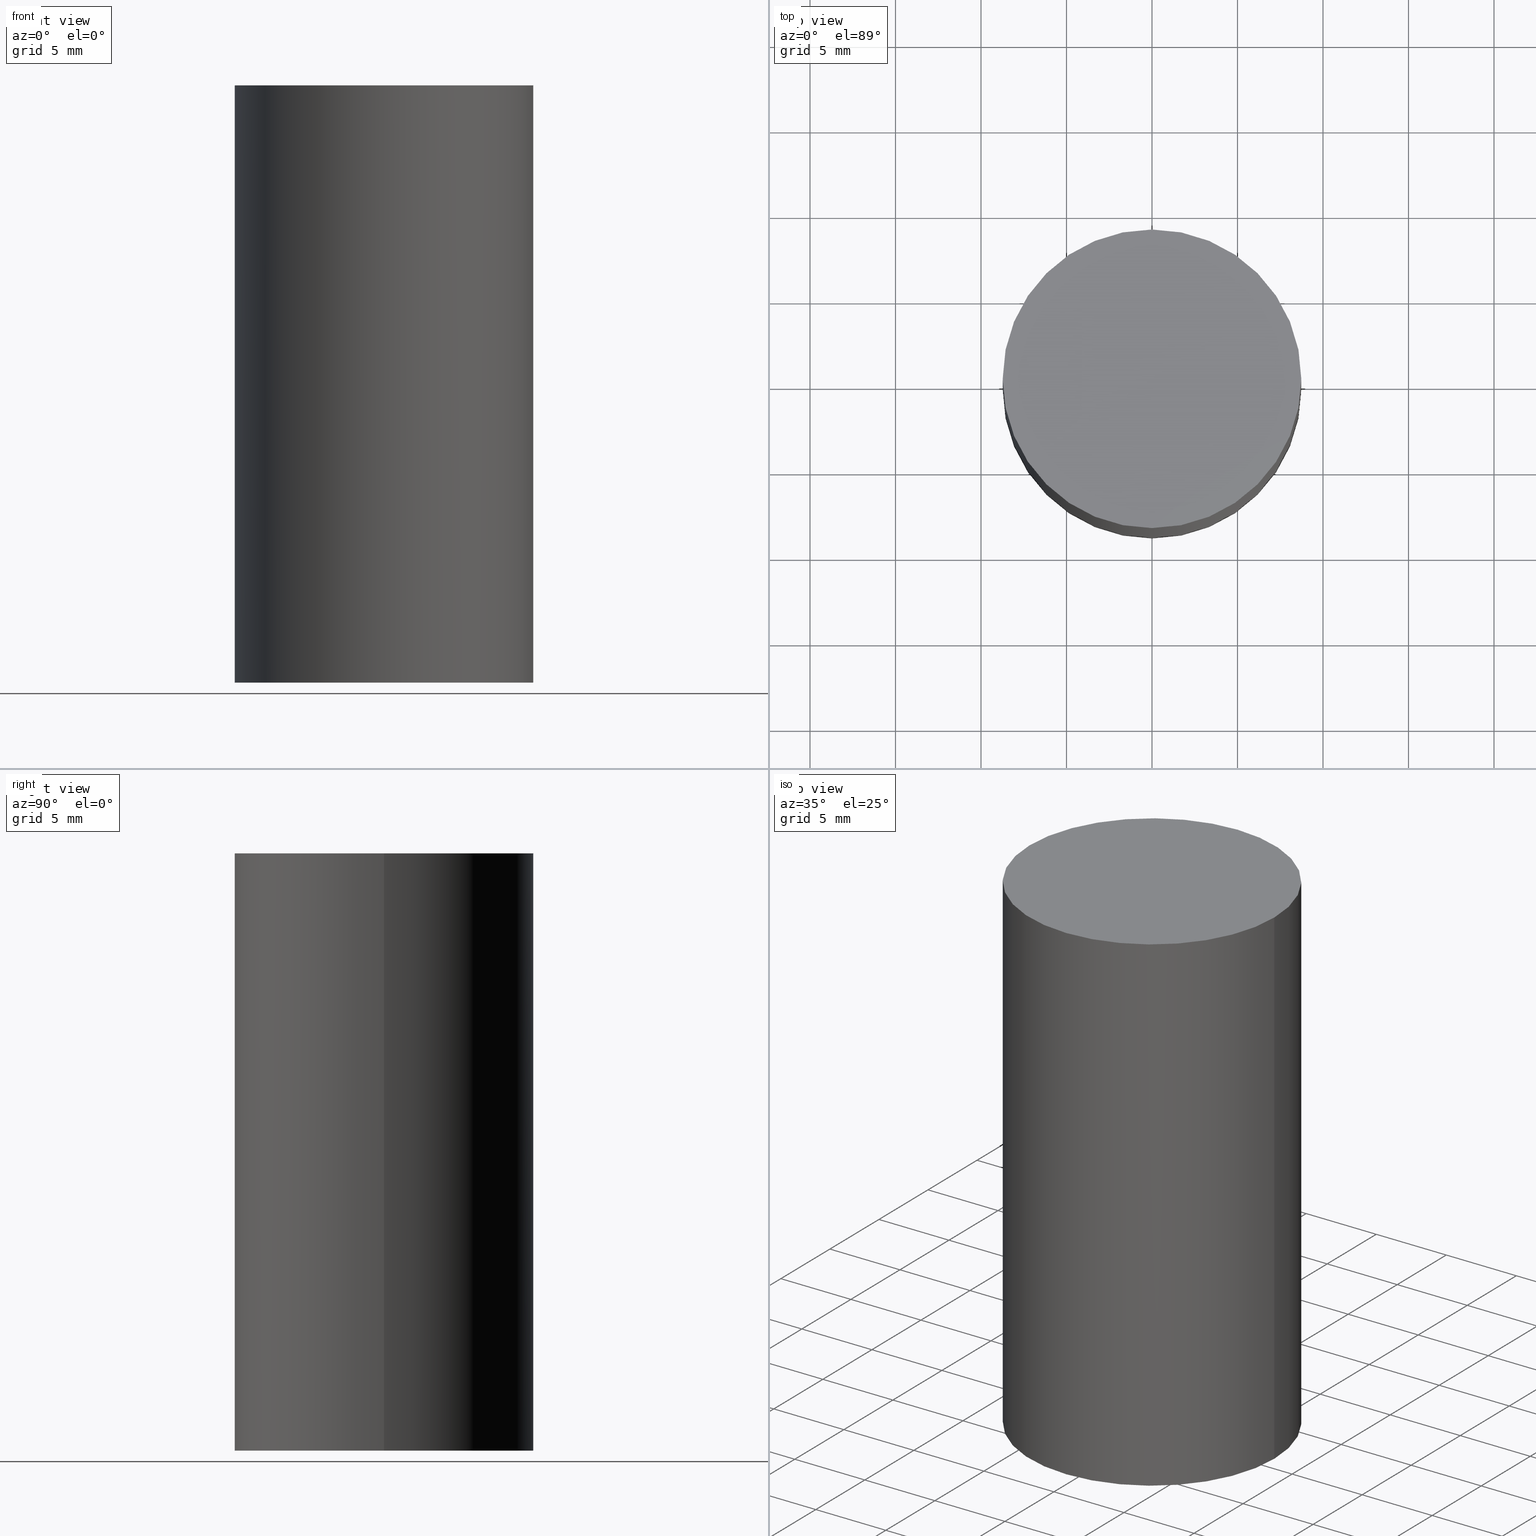
[diagram: canonical four-view strip — front | top / right | iso, engineering-drawing reading convention]
A machine part, canonical four-view strip (front | top / right | iso — engineering-drawing reading convention). The complete STEP part file that produces these views, byte-faithful:
ISO-10303-21;
HEADER;
FILE_DESCRIPTION (( 'STEP AP203' ),
    '1' );
FILE_NAME ('30845.STEP',
    '2024-03-13T16:27:45',
    ( '' ),
    ( '' ),
    'SwSTEP 2.0',
    'SolidWorks 2023',
    '' );
FILE_SCHEMA (( 'CONFIG_CONTROL_DESIGN' ));
ENDSEC;

DATA;
#1 = PERSON_AND_ORGANIZATION_ROLE ( 'classification_officer' ) ;
#2 = CARTESIAN_POINT ( 'NONE',  ( 2.400393420454656943E-15, 0.3437499999999995559, -0.1250000000000014710 ) ) ;
#3 = CYLINDRICAL_SURFACE ( 'NONE', #31, 0.3437500000000000000 ) ;
#4 = DIRECTION ( 'NONE',  ( -2.445468806185136877E-29, 3.491481338843145188E-15, 1.000000000000000000 ) ) ;
#5 = DIRECTION ( 'NONE',  ( 2.438088387897960049E-29, -3.491481338843145188E-15, -1.000000000000000000 ) ) ;
#6 = APPLICATION_CONTEXT ( 'configuration controlled 3d designs of mechanical parts and assemblies' ) ;
#7 = PRODUCT_DEFINITION ( 'UNKNOWN', '', #13, #152 ) ;
#8 = DIRECTION ( 'NONE',  ( -2.445468806185136597E-29, 3.491481338843145583E-15, 1.000000000000000000 ) ) ;
#9 = APPROVAL_DATE_TIME ( #12, #160 ) ;
#10 = COORDINATED_UNIVERSAL_TIME_OFFSET ( 5, 0, .BEHIND. ) ;
#11 = CC_DESIGN_PERSON_AND_ORGANIZATION_ASSIGNMENT ( #110, #145, ( #13 ) ) ;
#12 = DATE_AND_TIME ( #23, #163 ) ;
#13 = PRODUCT_DEFINITION_FORMATION_WITH_SPECIFIED_SOURCE ( 'ANY', '', #122, .NOT_KNOWN. ) ;
#14 = ADVANCED_FACE ( 'NONE', ( #104 ), #43, .F. ) ;
#15 = UNCERTAINTY_MEASURE_WITH_UNIT (LENGTH_MEASURE( 1.000000000000000082E-05 ), #159, 'distance_accuracy_value', 'NONE');
#16 =( GEOMETRIC_REPRESENTATION_CONTEXT ( 3 ) GLOBAL_UNCERTAINTY_ASSIGNED_CONTEXT ( ( #15 ) ) GLOBAL_UNIT_ASSIGNED_CONTEXT ( ( #159, #38, #158 ) ) REPRESENTATION_CONTEXT ( 'NONE', 'WORKASPACE' ) );
#17 = CARTESIAN_POINT ( 'NONE',  ( 3.056836007731426351E-30, -4.364351673553940360E-16, -0.1250000000000002498 ) ) ;
#18 = ORIENTED_EDGE ( 'NONE', *, *, #82, .F. ) ;
#19 = PLANE ( 'NONE',  #41 ) ;
#20 = CARTESIAN_POINT ( 'NONE',  ( 0.000000000000000000, 0.000000000000000000, 0.000000000000000000 ) ) ;
#21 = VECTOR ( 'NONE', #4, 39.37007874015748143 ) ;
#22 = PERSON_AND_ORGANIZATION ( #88, #144 ) ;
#23 = CALENDAR_DATE ( 2024, 13, 3 ) ;
#24 = AXIS2_PLACEMENT_3D ( 'NONE', #77, #8, #157 ) ;
#25 = SHAPE_DEFINITION_REPRESENTATION ( #146, #69 ) ;
#26 = DATE_AND_TIME ( #149, #32 ) ;
#27 = AXIS2_PLACEMENT_3D ( 'NONE', #33, #34, #115 ) ;
#28 = APPROVAL ( #94, 'UNSPECIFIED' ) ;
#29 = APPROVAL_STATUS ( 'not_yet_approved' ) ;
#30 = LINE ( 'NONE', #83, #21 ) ;
#31 = AXIS2_PLACEMENT_3D ( 'NONE', #60, #153, #86 ) ;
#32 = LOCAL_TIME ( 12, 27, 45.00000000000000000, #165 ) ;
#33 = CARTESIAN_POINT ( 'NONE',  ( 3.668203209277704895E-29, -5.237222008264718177E-15, -1.500000000000000222 ) ) ;
#34 = DIRECTION ( 'NONE',  ( -2.445468806185136597E-29, 3.491481338843145583E-15, 1.000000000000000000 ) ) ;
#35 = APPROVAL_PERSON_ORGANIZATION ( #37, #160, #175 ) ;
#36 = CARTESIAN_POINT ( 'NONE',  ( 3.576687321579069994E-29, -5.368277968210015545E-15, -1.500000000000000222 ) ) ;
#37 = PERSON_AND_ORGANIZATION ( #88, #144 ) ;
#38 =( NAMED_UNIT ( * ) PLANE_ANGLE_UNIT ( ) SI_UNIT ( $, .RADIAN. ) );
#39 = COORDINATED_UNIVERSAL_TIME_OFFSET ( 5, 0, .BEHIND. ) ;
#40 = CC_DESIGN_DATE_AND_TIME_ASSIGNMENT ( #173, #53, ( #7 ) ) ;
#41 = AXIS2_PLACEMENT_3D ( 'NONE', #2, #5, #120 ) ;
#42 = DIRECTION ( 'NONE',  ( -2.445468806185136597E-29, 3.491481338843145583E-15, 1.000000000000000000 ) ) ;
#43 = PLANE ( 'NONE',  #75 ) ;
#44 = CC_DESIGN_SECURITY_CLASSIFICATION ( #121, ( #13 ) ) ;
#45 = DIMENSIONAL_EXPONENTS ( 1.000000000000000000, 0.000000000000000000, 0.000000000000000000, 0.000000000000000000, 0.000000000000000000, 0.000000000000000000, 0.000000000000000000 ) ;
#46 = DIRECTION ( 'NONE',  ( -2.445468806185136877E-29, 3.491481338843145188E-15, 1.000000000000000000 ) ) ;
#47 = ADVANCED_FACE ( 'NONE', ( #155 ), #19, .F. ) ;
#48 = ORIENTED_EDGE ( 'NONE', *, *, #176, .F. ) ;
#49 = CC_DESIGN_APPROVAL ( #28, ( #13 ) ) ;
#50 = PERSON_AND_ORGANIZATION ( #88, #144 ) ;
#51 = APPLICATION_PROTOCOL_DEFINITION ( 'international standard', 'config_control_design', 1994, #6 ) ;
#52 = CIRCLE ( 'NONE', #133, 0.3437500000000000000 ) ;
#53 = DATE_TIME_ROLE ( 'creation_date' ) ;
#54 = CC_DESIGN_PERSON_AND_ORGANIZATION_ASSIGNMENT ( #124, #147, ( #122 ) ) ;
#55 = CALENDAR_DATE ( 2024, 13, 3 ) ;
#56 = CIRCLE ( 'NONE', #139, 0.3437500000000000000 ) ;
#57 = APPROVAL_PERSON_ORGANIZATION ( #50, #28, #112 ) ;
#58 = EDGE_LOOP ( 'NONE', ( #74, #151, #48, #103 ) ) ;
#59 = VERTEX_POINT ( 'NONE', #102 ) ;
#60 = CARTESIAN_POINT ( 'NONE',  ( 0.000000000000000000, 0.000000000000000000, 0.000000000000000000 ) ) ;
#61 = CARTESIAN_POINT ( 'NONE',  ( -0.3437500000000000000, -3.943379336347116681E-16, -1.500000000000000222 ) ) ;
#62 = CC_DESIGN_DATE_AND_TIME_ASSIGNMENT ( #113, #127, ( #121 ) ) ;
#63 = MECHANICAL_CONTEXT ( 'NONE', #98, 'mechanical' ) ;
#64 = DATE_AND_TIME ( #90, #156 ) ;
#65 = DIRECTION ( 'NONE',  ( -2.445468806185136597E-29, 3.491481338843145583E-15, 1.000000000000000000 ) ) ;
#66 = LENGTH_MEASURE_WITH_UNIT ( LENGTH_MEASURE( 0.02539999999999999897 ), #123 );
#67 = MANIFOLD_SOLID_BREP ( 'Body-Move/Copy2', #148 ) ;
#68 = CIRCLE ( 'NONE', #27, 0.3437500000000000000 ) ;
#69 = ADVANCED_BREP_SHAPE_REPRESENTATION ( '30845', ( #67, #93 ), #16 ) ;
#70 = ORIENTED_EDGE ( 'NONE', *, *, #138, .T. ) ;
#71 = AXIS2_PLACEMENT_3D ( 'NONE', #20, #65, #78 ) ;
#72 = EDGE_LOOP ( 'NONE', ( #18, #87 ) ) ;
#73 = VERTEX_POINT ( 'NONE', #141 ) ;
#74 = ORIENTED_EDGE ( 'NONE', *, *, #82, .T. ) ;
#75 = AXIS2_PLACEMENT_3D ( 'NONE', #36, #172, #100 ) ;
#76 = ORIENTED_EDGE ( 'NONE', *, *, #114, .F. ) ;
#77 = CARTESIAN_POINT ( 'NONE',  ( 3.056836007731426351E-30, -4.364351673553940360E-16, -0.1250000000000002498 ) ) ;
#78 = DIRECTION ( 'NONE',  ( 1.000000000000000000, -6.982962677686265922E-15, 4.876176775795935793E-29 ) ) ;
#79 = APPLICATION_PROTOCOL_DEFINITION ( 'international standard', 'config_control_design', 1994, #98 ) ;
#80 = PERSON_AND_ORGANIZATION_ROLE ( 'design_supplier' ) ;
#81 = VECTOR ( 'NONE', #46, 39.37007874015748143 ) ;
#82 = EDGE_CURVE ( 'NONE', #85, #89, #68, .T. ) ;
#83 = CARTESIAN_POINT ( 'NONE',  ( -0.3437500000000000000, 2.442490654175344389E-15, -1.690883937275123635E-29 ) ) ;
#84 = LOCAL_TIME ( 12, 27, 45.00000000000000000, #39 ) ;
#85 = VERTEX_POINT ( 'NONE', #136 ) ;
#86 = DIRECTION ( 'NONE',  ( 1.000000000000000000, -6.982962677686265922E-15, 4.876176775795935793E-29 ) ) ;
#87 = ORIENTED_EDGE ( 'NONE', *, *, #95, .F. ) ;
#88 = PERSON ( 'UNSPECIFIED', 'UNSPECIFIED', 'UNSPECIFIED', ('UNSPECIFIED'), ('UNSPECIFIED'), ('UNSPECIFIED') ) ;
#89 = VERTEX_POINT ( 'NONE', #61 ) ;
#90 = CALENDAR_DATE ( 2024, 13, 3 ) ;
#91 = CC_DESIGN_PERSON_AND_ORGANIZATION_ASSIGNMENT ( #111, #1, ( #121 ) ) ;
#92 = DIRECTION ( 'NONE',  ( 0.000000000000000000, 0.000000000000000000, 1.000000000000000000 ) ) ;
#93 = AXIS2_PLACEMENT_3D ( 'NONE', #162, #92, #142 ) ;
#94 = APPROVAL_STATUS ( 'not_yet_approved' ) ;
#95 = EDGE_CURVE ( 'NONE', #89, #85, #52, .T. ) ;
#96 = APPROVAL_STATUS ( 'not_yet_approved' ) ;
#97 = CYLINDRICAL_SURFACE ( 'NONE', #71, 0.3437500000000000000 ) ;
#98 = APPLICATION_CONTEXT ( 'configuration controlled 3d designs of mechanical parts and assemblies' ) ;
#99 = DIRECTION ( 'NONE',  ( 1.000000000000000000, -6.982962677686265922E-15, 0.000000000000000000 ) ) ;
#100 = DIRECTION ( 'NONE',  ( 1.000000000000000000, -6.982962677686265922E-15, 4.876176775795935793E-29 ) ) ;
#101 = CC_DESIGN_APPROVAL ( #160, ( #7 ) ) ;
#102 = CARTESIAN_POINT ( 'NONE',  ( -0.3437500000000000000, -3.943379336347120132E-16, -0.1250000000000002498 ) ) ;
#103 = ORIENTED_EDGE ( 'NONE', *, *, #138, .F. ) ;
#104 = FACE_OUTER_BOUND ( 'NONE', #72, .T. ) ;
#105 = CIRCLE ( 'NONE', #24, 0.3437500000000000000 ) ;
#106 = EDGE_CURVE ( 'NONE', #89, #59, #30, .T. ) ;
#107 = CC_DESIGN_PERSON_AND_ORGANIZATION_ASSIGNMENT ( #109, #131, ( #7 ) ) ;
#108 = FACE_OUTER_BOUND ( 'NONE', #58, .T. ) ;
#109 = PERSON_AND_ORGANIZATION ( #88, #144 ) ;
#110 = PERSON_AND_ORGANIZATION ( #88, #144 ) ;
#111 = PERSON_AND_ORGANIZATION ( #88, #144 ) ;
#112 = APPROVAL_ROLE ( '' ) ;
#113 = DATE_AND_TIME ( #55, #84 ) ;
#114 = EDGE_CURVE ( 'NONE', #59, #73, #56, .T. ) ;
#115 = DIRECTION ( 'NONE',  ( 1.000000000000000000, -6.982962677686265922E-15, 0.000000000000000000 ) ) ;
#116 = ORIENTED_EDGE ( 'NONE', *, *, #114, .T. ) ;
#117 = ORIENTED_EDGE ( 'NONE', *, *, #176, .T. ) ;
#118 = CC_DESIGN_APPROVAL ( #177, ( #121 ) ) ;
#119 = LINE ( 'NONE', #171, #81 ) ;
#120 = DIRECTION ( 'NONE',  ( -1.000000000000000000, 6.982962677686265922E-15, -4.876176775795935793E-29 ) ) ;
#121 = SECURITY_CLASSIFICATION ( '', '', #132 ) ;
#122 = PRODUCT ( '30845', '30845', '', ( #63 ) ) ;
#123 =( LENGTH_UNIT ( ) NAMED_UNIT ( * ) SI_UNIT ( $, .METRE. ) );
#124 = PERSON_AND_ORGANIZATION ( #88, #144 ) ;
#125 = COORDINATED_UNIVERSAL_TIME_OFFSET ( 5, 0, .BEHIND. ) ;
#126 = CC_DESIGN_PERSON_AND_ORGANIZATION_ASSIGNMENT ( #22, #80, ( #13 ) ) ;
#127 = DATE_TIME_ROLE ( 'classification_date' ) ;
#128 = DIRECTION ( 'NONE',  ( 1.000000000000000000, -6.982962677686265922E-15, 0.000000000000000000 ) ) ;
#129 = EDGE_LOOP ( 'NONE', ( #130, #137, #70, #76 ) ) ;
#130 = ORIENTED_EDGE ( 'NONE', *, *, #106, .F. ) ;
#131 = PERSON_AND_ORGANIZATION_ROLE ( 'creator' ) ;
#132 = SECURITY_CLASSIFICATION_LEVEL ( 'unclassified' ) ;
#133 = AXIS2_PLACEMENT_3D ( 'NONE', #167, #42, #99 ) ;
#134 = ADVANCED_FACE ( 'NONE', ( #154 ), #3, .T. ) ;
#135 = APPROVAL_PERSON_ORGANIZATION ( #150, #177, #164 ) ;
#136 = CARTESIAN_POINT ( 'NONE',  ( 0.3437500000000000000, -7.637615428719372358E-15, -1.500000000000000222 ) ) ;
#137 = ORIENTED_EDGE ( 'NONE', *, *, #95, .T. ) ;
#138 = EDGE_CURVE ( 'NONE', #85, #73, #119, .T. ) ;
#139 = AXIS2_PLACEMENT_3D ( 'NONE', #17, #170, #128 ) ;
#140 = PRODUCT_RELATED_PRODUCT_CATEGORY ( 'detail', '', ( #122 ) ) ;
#141 = CARTESIAN_POINT ( 'NONE',  ( 0.3437500000000000000, -2.836828587810047823E-15, -0.1250000000000002498 ) ) ;
#142 = DIRECTION ( 'NONE',  ( 1.000000000000000000, 0.000000000000000000, 0.000000000000000000 ) ) ;
#143 = COORDINATED_UNIVERSAL_TIME_OFFSET ( 5, 0, .BEHIND. ) ;
#144 = ORGANIZATION ( 'UNSPECIFIED', 'UNSPECIFIED', '' ) ;
#145 = PERSON_AND_ORGANIZATION_ROLE ( 'creator' ) ;
#146 = PRODUCT_DEFINITION_SHAPE ( 'NONE', 'NONE',  #7 ) ;
#147 = PERSON_AND_ORGANIZATION_ROLE ( 'design_owner' ) ;
#148 = CLOSED_SHELL ( 'NONE', ( #161, #14, #134, #47 ) ) ;
#149 = CALENDAR_DATE ( 2024, 13, 3 ) ;
#150 = PERSON_AND_ORGANIZATION ( #88, #144 ) ;
#151 = ORIENTED_EDGE ( 'NONE', *, *, #106, .T. ) ;
#152 = DESIGN_CONTEXT ( 'detailed design', #6, 'design' ) ;
#153 = DIRECTION ( 'NONE',  ( -2.445468806185136597E-29, 3.491481338843145583E-15, 1.000000000000000000 ) ) ;
#154 = FACE_OUTER_BOUND ( 'NONE', #129, .T. ) ;
#155 = FACE_OUTER_BOUND ( 'NONE', #168, .T. ) ;
#156 = LOCAL_TIME ( 12, 27, 45.00000000000000000, #143 ) ;
#157 = DIRECTION ( 'NONE',  ( 1.000000000000000000, -6.982962677686265922E-15, 0.000000000000000000 ) ) ;
#158 =( NAMED_UNIT ( * ) SI_UNIT ( $, .STERADIAN. ) SOLID_ANGLE_UNIT ( ) );
#159 =( CONVERSION_BASED_UNIT ( 'INCH', #66 ) LENGTH_UNIT ( ) NAMED_UNIT ( #45 ) );
#160 = APPROVAL ( #96, 'UNSPECIFIED' ) ;
#161 = ADVANCED_FACE ( 'NONE', ( #108 ), #97, .T. ) ;
#162 = CARTESIAN_POINT ( 'NONE',  ( 0.000000000000000000, 0.000000000000000000, 0.000000000000000000 ) ) ;
#163 = LOCAL_TIME ( 12, 27, 45.00000000000000000, #10 ) ;
#164 = APPROVAL_ROLE ( '' ) ;
#165 = COORDINATED_UNIVERSAL_TIME_OFFSET ( 5, 0, .BEHIND. ) ;
#166 = APPROVAL_DATE_TIME ( #26, #177 ) ;
#167 = CARTESIAN_POINT ( 'NONE',  ( 3.668203209277704895E-29, -5.237222008264718177E-15, -1.500000000000000222 ) ) ;
#168 = EDGE_LOOP ( 'NONE', ( #117, #116 ) ) ;
#169 = LOCAL_TIME ( 12, 27, 45.00000000000000000, #125 ) ;
#170 = DIRECTION ( 'NONE',  ( -2.445468806185136597E-29, 3.491481338843145583E-15, 1.000000000000000000 ) ) ;
#171 = CARTESIAN_POINT ( 'NONE',  ( 0.3437500000000000000, -2.400393420454653787E-15, 1.676185766679852859E-29 ) ) ;
#172 = DIRECTION ( 'NONE',  ( -2.438088387897960049E-29, 3.491481338843145188E-15, 1.000000000000000000 ) ) ;
#173 = DATE_AND_TIME ( #178, #169 ) ;
#174 = APPROVAL_DATE_TIME ( #64, #28 ) ;
#175 = APPROVAL_ROLE ( '' ) ;
#176 = EDGE_CURVE ( 'NONE', #73, #59, #105, .T. ) ;
#177 = APPROVAL ( #29, 'UNSPECIFIED' ) ;
#178 = CALENDAR_DATE ( 2024, 13, 3 ) ;
ENDSEC;
END-ISO-10303-21;
